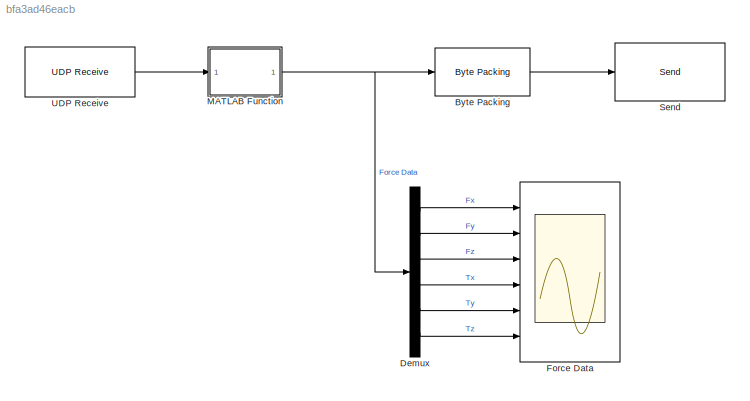
MODEL slx_bfa3ad46eacb
KIND model
CONFIG AbsTol = auto
CONFIG FixedStep = 0.001
CONFIG MaxStep = auto
CONFIG MinStep = auto
CONFIG RelTol = 1e-3
CONFIG SampleTimeConstraint = Unconstrained
CONFIG Solver = ode4
CONFIG SolverMode = Auto
CONFIG SolverName = ode4
CONFIG StartTime = 0.0
CONFIG StopTime = inf
BLOCK [Reference] Byte Packing   REF=xpcutilitieslib/Byte Packing 
  Ports = [1, 1]
  SourceBlock = xpcutilitieslib/Byte Packing
  SourceType = xpcbytepacking
BLOCK [Demux] Demux
  DisplayOption = bar
  Outputs = 6
  Ports = [1, 6]
BLOCK [Scope] Force Data
  NumInputPorts = 6
  Ports = [6]
  ScopeSpecificationString = Simulink.scopes.TimeScopeBlockCfg('CurrentConfiguration', extmgr.ConfigurationSet(extmgr.Configuration('Core','General UI',true),extmgr.Configuration('Core','Source UI',true),extmgr.Configuration('Sources','WiredSimulink',true,'DataLoggingDecimation','1','DataLoggingVariableName','signal','DataLogging',true,'DataLoggingSaveFormat','StructureWithTime'),extmgr.Configuration('Visuals','Time Domain',t...<+2288ch>
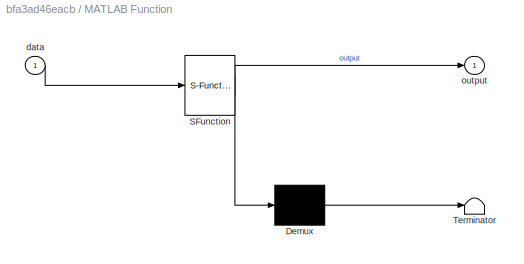
BLOCK [SubSystem] MATLAB Function
  ErrorFcn = Stateflow.Translate.translate
  PermitHierarchicalResolution = ExplicitOnly
  Ports = [1, 1]
  RequestExecContextInheritance = off
  SFBlockType = MATLAB Function
  TreatAsAtomicUnit = on
  Variant = off
BLOCK [Demux] MATLAB Function/ Demux 
  Outputs = 1
  Ports = [1, 1]
BLOCK [S-Function] MATLAB Function/ SFunction 
  EnableBusSupport = on
  FunctionName = sf_sfun
  PortCounts = [1 2]
  Ports = [1, 2]
  SFunctionDeploymentMode = off
  Tag = Stateflow S-Function tx_host 2
BLOCK [Terminator] MATLAB Function/ Terminator 
BLOCK [Inport] MATLAB Function/data
  IconDisplay = Port number
BLOCK [Outport] MATLAB Function/output
  IconDisplay = Port number
BLOCK [Reference] Send   REF=xpcrtudplib/Legacy UDP/Send 
  Ports = [1]
  SourceBlock = xpcrtudplib/Legacy UDP/Send
  SourceType = xpcudpbytesend
BLOCK [Reference] UDP Receive  REF=instrumentlib/UDP Receive
  Ports = [0, 1]
  SourceBlock = instrumentlib/UDP Receive
  SourceType = UDP Receive
LINE Byte Packing :1 -> Send :1
LINE Demux:1 -> Force Data:1
LINE Demux:2 -> Force Data:2
LINE Demux:3 -> Force Data:3
LINE Demux:4 -> Force Data:4
LINE Demux:5 -> Force Data:5
LINE Demux:6 -> Force Data:6
NET MATLAB Function:1 -> Byte Packing :1, Demux:1
LINE UDP Receive:1 -> MATLAB Function:1
note: NET lines group one-source signal fan-out (src -> all destinations, sorted); 1:1 wires keep LINE
CHART MATLAB Function states=1 transitions=1
  STATE_LABEL 'eML_blk_kernel()'
  STATE_LABEL "SCRIPT:\nfunction output = fcn(data)\n%#codegen\nNUM_RDT_FIELDS = 9;\n    calmat=[1 1 1 25 25 35 250 250 250];\n    RDTPacket = zeros(1,NUM_RDT_FIELDS, 'int32');\n\n    for i = NUM_RDT_FIELDS:-1:1\n        %display(data(i*4));\n        %display(int32(data(i*4)));\n        index = (i-1)*4 + 1;\n        RDTPacket(i) = bitand(int32(data(index)), hex2dec('ff'));\n        j = (i-1)*4 + 2;\n        while j < ((i-1)*...<+275ch>"
